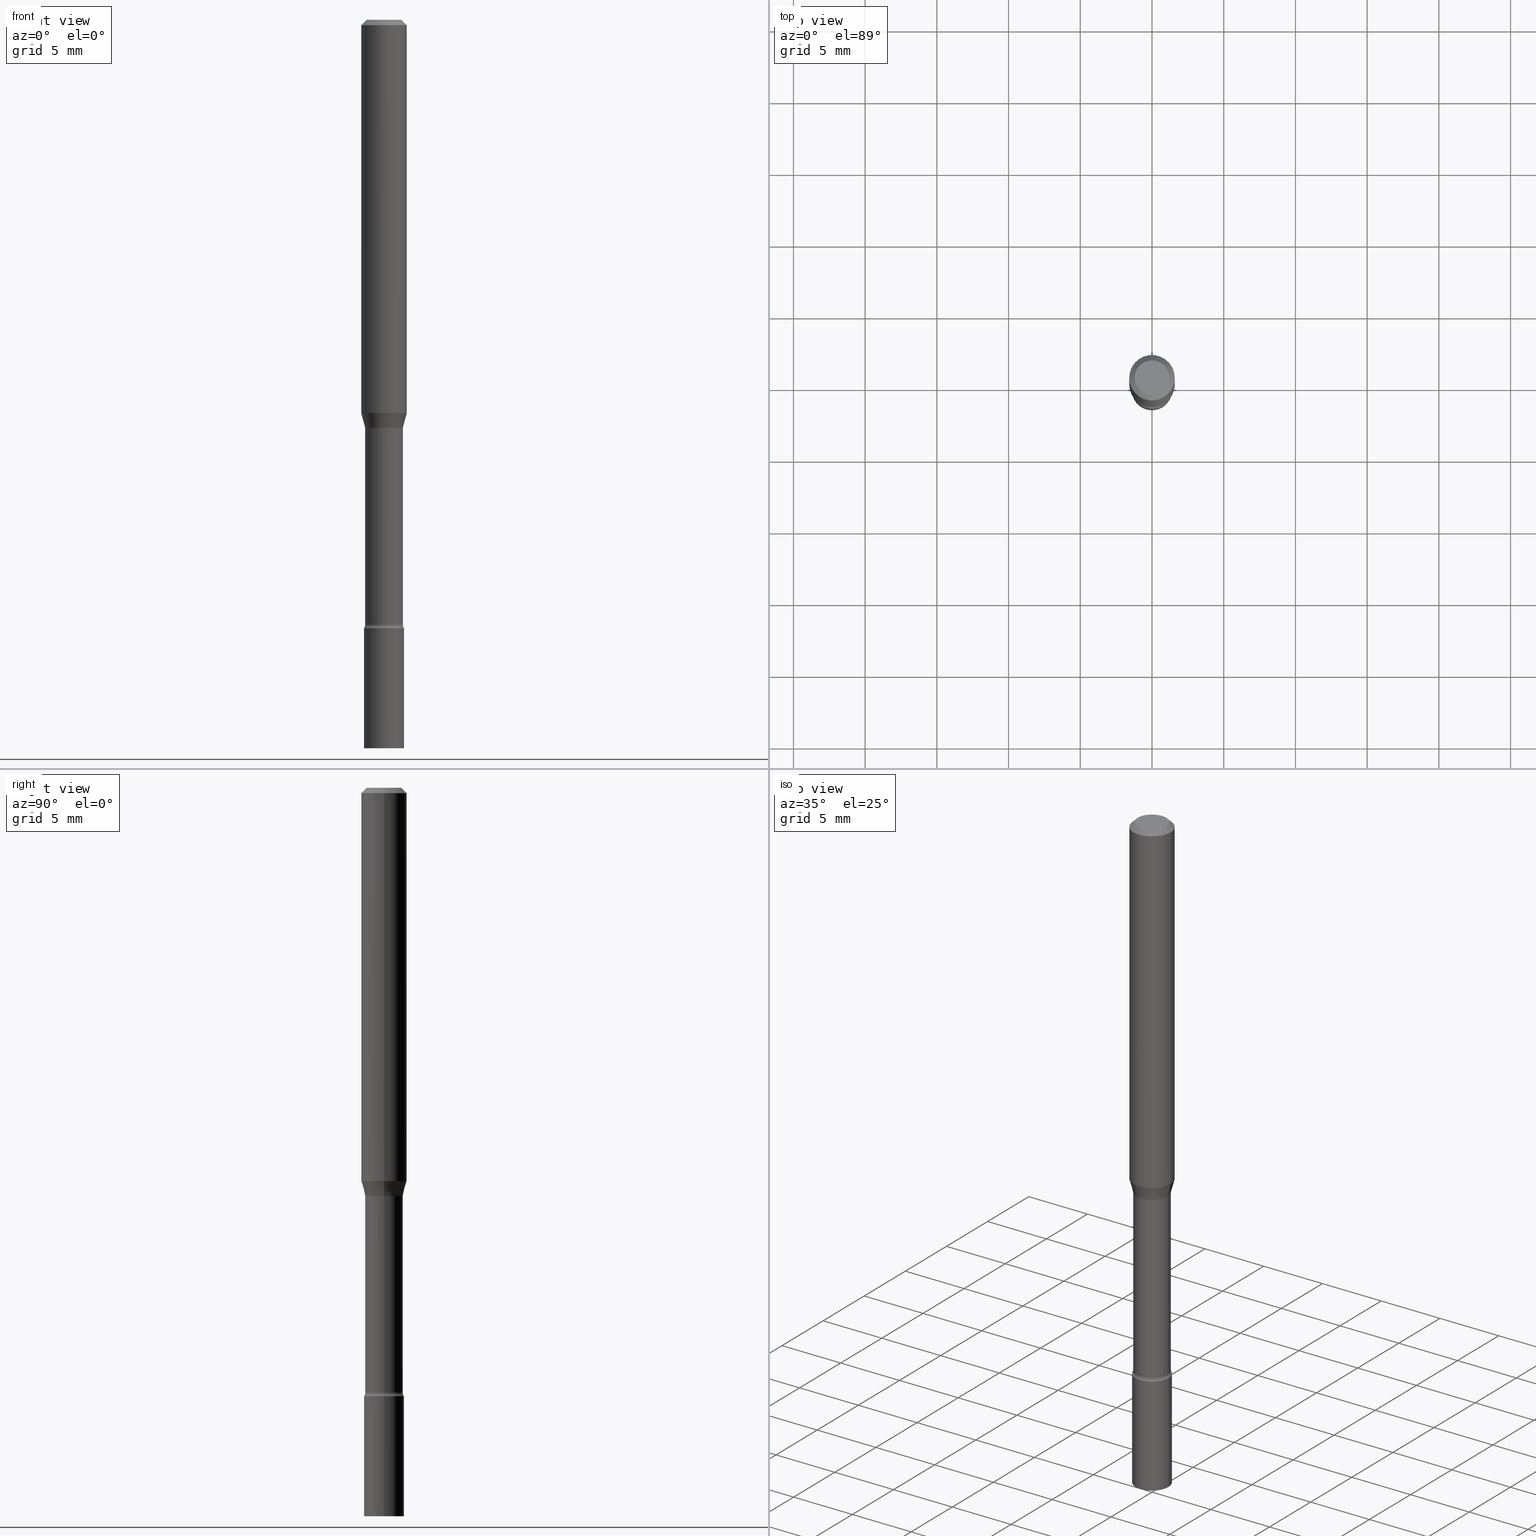
[diagram: canonical four-view strip — front | top / right | iso, engineering-drawing reading convention]
A machine part, canonical four-view strip (front | top / right | iso — engineering-drawing reading convention). The complete STEP part file that produces these views, byte-faithful:
ISO-10303-21;
HEADER;
FILE_DESCRIPTION (( 'STEP AP203' ),
    '1' );
FILE_NAME ('09887.STEP',
    '2024-03-09T02:50:11',
    ( '' ),
    ( '' ),
    'SwSTEP 2.0',
    'SolidWorks 2023',
    '' );
FILE_SCHEMA (( 'CONFIG_CONTROL_DESIGN' ));
ENDSEC;

DATA;
#1 = EDGE_CURVE ( 'NONE', #305, #97, #10, .T. ) ;
#2 = DIRECTION ( 'NONE',  ( 1.000000000000000000, -6.982962677686267499E-15, 4.876681293081646444E-29 ) ) ;
#3 = CARTESIAN_POINT ( 'NONE',  ( 3.668203209277712094E-31, -5.237222008264728876E-17, -0.01500000000000003067 ) ) ;
#4 = APPROVAL_STATUS ( 'not_yet_approved' ) ;
#5 = DIRECTION ( 'NONE',  ( 0.7071067811865475727, -7.319954787623256045E-15, -0.7071067811865474617 ) ) ;
#6 = CARTESIAN_POINT ( 'NONE',  ( 2.743754344068947711E-29, -3.917354033082399546E-15, -1.121974787463810852 ) ) ;
#7 = CYLINDRICAL_SURFACE ( 'NONE', #204, 0.05169999999999999596 ) ;
#8 = CARTESIAN_POINT ( 'NONE',  ( 2.734260335550275529E-29, -3.903799105090709748E-15, -1.118092501787272930 ) ) ;
#9 = PERSON_AND_ORGANIZATION ( #422, #38 ) ;
#10 = CIRCLE ( 'NONE', #494, 0.05169999999999999596 ) ;
#11 = CARTESIAN_POINT ( 'NONE',  ( 0.05169999999999999596, -4.278373203518779894E-15, -1.121974787463810852 ) ) ;
#12 = APPROVAL_PERSON_ORGANIZATION ( #345, #129, #445 ) ;
#13 = CARTESIAN_POINT ( 'NONE',  ( 0.06669999999999999540, -4.383117643684073264E-15, -1.121974787463810852 ) ) ;
#14 = APPROVAL_STATUS ( 'not_yet_approved' ) ;
#15 = ORIENTED_EDGE ( 'NONE', *, *, #260, .F. ) ;
#16 = EDGE_CURVE ( 'NONE', #293, #286, #377, .T. ) ;
#17 = ORIENTED_EDGE ( 'NONE', *, *, #292, .F. ) ;
#18 = AXIS2_PLACEMENT_3D ( 'NONE', #402, #443, #247 ) ;
#19 = AXIS2_PLACEMENT_3D ( 'NONE', #347, #306, #474 ) ;
#20 = ORIENTED_EDGE ( 'NONE', *, *, #122, .T. ) ;
#21 = EDGE_LOOP ( 'NONE', ( #471, #128, #279, #140 ) ) ;
#22 = ORIENTED_EDGE ( 'NONE', *, *, #290, .F. ) ;
#23 = CIRCLE ( 'NONE', #131, 0.05221111260566397433 ) ;
#24 = EDGE_LOOP ( 'NONE', ( #251, #227 ) ) ;
#25 = CIRCLE ( 'NONE', #308, 0.06250000000000000000 ) ;
#26 = EDGE_LOOP ( 'NONE', ( #208, #94, #374, #206 ) ) ;
#27 = CARTESIAN_POINT ( 'NONE',  ( 3.668203209277712094E-31, -5.237222008264728876E-17, -0.01500000000000003067 ) ) ;
#28 = DIRECTION ( 'NONE',  ( 1.000000000000000000, -6.982962677686270655E-15, 0.000000000000000000 ) ) ;
#29 = CIRCLE ( 'NONE', #64, 0.05169999999999999596 ) ;
#30 = LINE ( 'NONE', #115, #463 ) ;
#31 = EDGE_LOOP ( 'NONE', ( #17, #490, #20, #57 ) ) ;
#32 = DIRECTION ( 'NONE',  ( -0.7071067811865475727, 2.468850131082257455E-15, -0.7071067811865474617 ) ) ;
#33 = COORDINATED_UNIVERSAL_TIME_OFFSET ( 5, 0, .BEHIND. ) ;
#34 = CARTESIAN_POINT ( 'NONE',  ( 0.06250000000000000000, -4.206166100757109434E-15, -1.079693851278256123 ) ) ;
#35 = CC_DESIGN_PERSON_AND_ORGANIZATION_ASSIGNMENT ( #487, #412, ( #47 ) ) ;
#36 = DIRECTION ( 'NONE',  ( -2.445468806185136597E-29, 3.491481338843145583E-15, 1.000000000000000000 ) ) ;
#37 = CIRCLE ( 'NONE', #18, 0.01500000000000006189 ) ;
#38 = ORGANIZATION ( 'UNSPECIFIED', 'UNSPECIFIED', '' ) ;
#39 = DIRECTION ( 'NONE',  ( 1.000000000000000000, -6.982962677686262766E-15, 0.000000000000000000 ) ) ;
#40 = CARTESIAN_POINT ( 'NONE',  ( -0.06250000000000000000, -1.466962366892119806E-15, -0.01500000000000003067 ) ) ;
#41 = DIRECTION ( 'NONE',  ( -2.438088387897960049E-29, 3.491481338843145188E-15, 1.000000000000000000 ) ) ;
#42 = DIRECTION ( 'NONE',  ( 1.000000000000000000, -6.982962677686266711E-15, 0.000000000000000000 ) ) ;
#43 = APPROVAL_ROLE ( '' ) ;
#44 = CARTESIAN_POINT ( 'NONE',  ( 4.060978042117791300E-29, -5.798000373443578100E-15, -1.660613307291702645 ) ) ;
#45 = EDGE_CURVE ( 'NONE', #446, #173, #29, .T. ) ;
#46 = DIRECTION ( 'NONE',  ( 1.000000000000000000, -6.982962677686266711E-15, 4.876176775795936353E-29 ) ) ;
#47 = SECURITY_CLASSIFICATION ( '', '', #273 ) ;
#48 = MANIFOLD_SOLID_BREP ( 'Body-Move/Copy2[1]', #363 ) ;
#49 = EDGE_LOOP ( 'NONE', ( #453, #178 ) ) ;
#50 = MANIFOLD_SOLID_BREP ( 'Body-Move/Copy2[2]', #456 ) ;
#51 = CARTESIAN_POINT ( 'NONE',  ( 7.070806723891919892E-46, -1.009523804376275404E-31, -2.891391092786900929E-17 ) ) ;
#52 = APPROVAL ( #4, 'UNSPECIFIED' ) ;
#53 = ORIENTED_EDGE ( 'NONE', *, *, #365, .T. ) ;
#54 = LINE ( 'NONE', #496, #90 ) ;
#55 = ORIENTED_EDGE ( 'NONE', *, *, #292, .T. ) ;
#56 = APPROVAL_DATE_TIME ( #285, #440 ) ;
#57 = ORIENTED_EDGE ( 'NONE', *, *, #188, .T. ) ;
#58 = DIRECTION ( 'NONE',  ( -2.445468806185136597E-29, 3.491481338843145583E-15, 1.000000000000000000 ) ) ;
#59 = EDGE_CURVE ( 'NONE', #286, #346, #333, .T. ) ;
#60 = VECTOR ( 'NONE', #358, 39.37007874015748143 ) ;
#61 = VERTEX_POINT ( 'NONE', #376 ) ;
#62 = CARTESIAN_POINT ( 'NONE',  ( 4.083932906329177803E-29, -5.830773835868053056E-15, -1.669999999999999929 ) ) ;
#63 = DIRECTION ( 'NONE',  ( -2.445468806185136877E-29, 3.491481338843145188E-15, 1.000000000000000000 ) ) ;
#64 = AXIS2_PLACEMENT_3D ( 'NONE', #295, #110, #338 ) ;
#65 = ORIENTED_EDGE ( 'NONE', *, *, #283, .T. ) ;
#66 = LOCAL_TIME ( 21, 50, 11.00000000000000000, #33 ) ;
#67 = CARTESIAN_POINT ( 'NONE',  ( 3.668203209277712094E-31, -5.237222008264728876E-17, -0.01500000000000003067 ) ) ;
#68 = PERSON_AND_ORGANIZATION_ROLE ( 'design_supplier' ) ;
#69 = CARTESIAN_POINT ( 'NONE',  ( 0.04749999999999999362, -4.035134999187579609E-16, -2.891391092786643933E-17 ) ) ;
#70 = FACE_OUTER_BOUND ( 'NONE', #289, .T. ) ;
#71 = DIRECTION ( 'NONE',  ( -6.982962677686266711E-15, -1.000000000000000000, 3.491481338843145583E-15 ) ) ;
#72 = APPLICATION_CONTEXT ( 'configuration controlled 3d designs of mechanical parts and assemblies' ) ;
#73 = DATE_AND_TIME ( #113, #181 ) ;
#74 = DIRECTION ( 'NONE',  ( -2.445468806185136597E-29, 3.491481338843145583E-15, 1.000000000000000000 ) ) ;
#75 = PERSON_AND_ORGANIZATION_ROLE ( 'design_owner' ) ;
#76 = TOROIDAL_SURFACE ( 'NONE', #334, 0.06669999999999999540, 0.01499999999999999771 ) ;
#77 = TOROIDAL_SURFACE ( 'NONE', #168, 0.06670000000000005091, 0.01500000000000005322 ) ;
#78 = LINE ( 'NONE', #311, #427 ) ;
#79 = CARTESIAN_POINT ( 'NONE',  ( -0.06670000000000005091, -5.324068368691591408E-15, -1.660613307291702645 ) ) ;
#80 = DIRECTION ( 'NONE',  ( -1.000000000000000000, 6.982962677686265922E-15, -4.876176775795935793E-29 ) ) ;
#81 = DIRECTION ( 'NONE',  ( 7.105427357601001859E-15, 1.000000000000000000, -3.491481338843145583E-15 ) ) ;
#82 = CARTESIAN_POINT ( 'NONE',  ( -0.06250000000000000000, 3.840629472727443437E-16, -0.01500000000000003067 ) ) ;
#83 = DIRECTION ( 'NONE',  ( -2.445468806185136597E-29, 3.491481338843145583E-15, 1.000000000000000000 ) ) ;
#84 = ORIENTED_EDGE ( 'NONE', *, *, #492, .T. ) ;
#85 = ADVANCED_FACE ( 'NONE', ( #432 ), #352, .T. ) ;
#86 = DIRECTION ( 'NONE',  ( -2.445468806185136877E-29, 3.491481338843145188E-15, 1.000000000000000000 ) ) ;
#87 = VERTEX_POINT ( 'NONE', #69 ) ;
#88 = CIRCLE ( 'NONE', #397, 0.05500000000000000028 ) ;
#89 = DIRECTION ( 'NONE',  ( -1.000000000000000000, 7.105427357600993970E-15, 0.000000000000000000 ) ) ;
#90 = VECTOR ( 'NONE', #454, 39.37007874015748143 ) ;
#91 = VERTEX_POINT ( 'NONE', #294 ) ;
#92 = CC_DESIGN_PERSON_AND_ORGANIZATION_ASSIGNMENT ( #318, #146, ( #162 ) ) ;
#93 = ADVANCED_FACE ( 'NONE', ( #458 ), #76, .F. ) ;
#94 = ORIENTED_EDGE ( 'NONE', *, *, #260, .T. ) ;
#95 = EDGE_LOOP ( 'NONE', ( #411, #105, #497, #420 ) ) ;
#96 = TOROIDAL_SURFACE ( 'NONE', #222, 0.06670000000000005091, 0.01500000000000005322 ) ;
#97 = VERTEX_POINT ( 'NONE', #255 ) ;
#98 = ORIENTED_EDGE ( 'NONE', *, *, #59, .T. ) ;
#99 = APPLICATION_CONTEXT ( 'configuration controlled 3d designs of mechanical parts and assemblies' ) ;
#100 = ADVANCED_FACE ( 'NONE', ( #459 ), #268, .T. ) ;
#101 = AXIS2_PLACEMENT_3D ( 'NONE', #339, #215, #102 ) ;
#102 = DIRECTION ( 'NONE',  ( 1.000000000000000000, -6.982962677686266711E-15, 0.000000000000000000 ) ) ;
#103 = ADVANCED_FACE ( 'NONE', ( #435 ), #96, .F. ) ;
#104 = CARTESIAN_POINT ( 'NONE',  ( 7.070806723891919892E-46, -1.009523804376275404E-31, -2.891391092786900929E-17 ) ) ;
#105 = ORIENTED_EDGE ( 'NONE', *, *, #442, .F. ) ;
#106 = DIRECTION ( 'NONE',  ( -2.445468806185136597E-29, 3.491481338843145583E-15, 1.000000000000000000 ) ) ;
#107 = FACE_OUTER_BOUND ( 'NONE', #21, .T. ) ;
#108 = VECTOR ( 'NONE', #503, 39.37007874015748143 ) ;
#109 = ORIENTED_EDGE ( 'NONE', *, *, #442, .T. ) ;
#110 = DIRECTION ( 'NONE',  ( -2.445468806185136597E-29, 3.491481338843145583E-15, 1.000000000000000000 ) ) ;
#111 = CARTESIAN_POINT ( 'NONE',  ( 0.05500000000000000028, -6.214836783140797252E-15, -1.669999999999999929 ) ) ;
#112 = CARTESIAN_POINT ( 'NONE',  ( 2.734260335550275529E-29, -3.903799105090709748E-15, -1.118092501787272930 ) ) ;
#113 = CALENDAR_DATE ( 2024, 8, 3 ) ;
#114 = EDGE_CURVE ( 'NONE', #87, #346, #154, .T. ) ;
#115 = CARTESIAN_POINT ( 'NONE',  ( 0.05500000000000000028, -3.840629472727446888E-16, 2.681897226687764826E-30 ) ) ;
#116 = DIRECTION ( 'NONE',  ( -2.445468806185136597E-29, 3.491481338843145583E-15, 1.000000000000000000 ) ) ;
#117 = CARTESIAN_POINT ( 'NONE',  ( 0.05169999999999999596, -6.159019543879958449E-15, -1.660613307291702645 ) ) ;
#118 = DIRECTION ( 'NONE',  ( 1.000000000000000000, -6.982962677686262766E-15, 0.000000000000000000 ) ) ;
#119 = AXIS2_PLACEMENT_3D ( 'NONE', #8, #83, #220 ) ;
#120 = AXIS2_PLACEMENT_3D ( 'NONE', #138, #165, #369 ) ;
#121 = LINE ( 'NONE', #520, #60 ) ;
#122 = EDGE_CURVE ( 'NONE', #305, #373, #37, .T. ) ;
#123 = DIRECTION ( 'NONE',  ( 1.000000000000000000, -6.982962677686265922E-15, 4.876176775795935793E-29 ) ) ;
#124 = ORIENTED_EDGE ( 'NONE', *, *, #130, .T. ) ;
#125 = DIRECTION ( 'NONE',  ( -2.445468806185136597E-29, 3.491481338843145583E-15, 1.000000000000000000 ) ) ;
#126 = ORIENTED_EDGE ( 'NONE', *, *, #500, .F. ) ;
#127 = CALENDAR_DATE ( 2024, 8, 3 ) ;
#128 = ORIENTED_EDGE ( 'NONE', *, *, #375, .F. ) ;
#129 = APPROVAL ( #195, 'UNSPECIFIED' ) ;
#130 = EDGE_CURVE ( 'NONE', #97, #446, #78, .T. ) ;
#131 = AXIS2_PLACEMENT_3D ( 'NONE', #155, #106, #393 ) ;
#132 = AXIS2_PLACEMENT_3D ( 'NONE', #257, #340, #426 ) ;
#133 = EDGE_LOOP ( 'NONE', ( #202, #84, #366, #22 ) ) ;
#134 = EDGE_LOOP ( 'NONE', ( #337, #392 ) ) ;
#135 = ORIENTED_EDGE ( 'NONE', *, *, #114, .T. ) ;
#136 = VECTOR ( 'NONE', #5, 39.37007874015748143 ) ;
#137 = CIRCLE ( 'NONE', #19, 0.05500000000000000028 ) ;
#138 = CARTESIAN_POINT ( 'NONE',  ( 0.000000000000000000, 0.000000000000000000, 0.000000000000000000 ) ) ;
#139 = DIRECTION ( 'NONE',  ( -2.445468806185136597E-29, 3.491481338843145583E-15, 1.000000000000000000 ) ) ;
#140 = ORIENTED_EDGE ( 'NONE', *, *, #470, .T. ) ;
#141 = DIRECTION ( 'NONE',  ( -2.445468806185136597E-29, 3.491481338843145583E-15, 1.000000000000000000 ) ) ;
#142 = PRODUCT_DEFINITION_SHAPE ( 'NONE', 'NONE',  #508 ) ;
#143 = DIRECTION ( 'NONE',  ( 1.000000000000000000, -6.982962677686266711E-15, 4.876176775795935793E-29 ) ) ;
#144 = ORIENTED_EDGE ( 'NONE', *, *, #45, .T. ) ;
#145 = DIRECTION ( 'NONE',  ( -2.445468806185136597E-29, 3.491481338843145583E-15, 1.000000000000000000 ) ) ;
#146 = PERSON_AND_ORGANIZATION_ROLE ( 'creator' ) ;
#147 = ORIENTED_EDGE ( 'NONE', *, *, #122, .F. ) ;
#148 = DIRECTION ( 'NONE',  ( 1.000000000000000000, -6.982962677686266711E-15, 4.876176775795935793E-29 ) ) ;
#149 = DIRECTION ( 'NONE',  ( -2.445468806185136597E-29, 3.491481338843145583E-15, 1.000000000000000000 ) ) ;
#150 = VECTOR ( 'NONE', #480, 39.37007874015748143 ) ;
#151 = AXIS2_PLACEMENT_3D ( 'NONE', #27, #301, #382 ) ;
#152 = DIRECTION ( 'NONE',  ( 1.000000000000000000, -6.982962677686275388E-15, 0.000000000000000000 ) ) ;
#153 = DIRECTION ( 'NONE',  ( -2.445468806185136877E-29, 3.491481338843145188E-15, 1.000000000000000000 ) ) ;
#154 = LINE ( 'NONE', #357, #136 ) ;
#155 = CARTESIAN_POINT ( 'NONE',  ( 2.734260335550275529E-29, -3.903799105090709748E-15, -1.118092501787272930 ) ) ;
#156 = COORDINATED_UNIVERSAL_TIME_OFFSET ( 5, 0, .BEHIND. ) ;
#157 = EDGE_CURVE ( 'NONE', #302, #293, #314, .T. ) ;
#158 = DIRECTION ( 'NONE',  ( -2.445468806185136597E-29, 3.491481338843145583E-15, 1.000000000000000000 ) ) ;
#159 = DIRECTION ( 'NONE',  ( 1.000000000000000000, -6.982962677686266711E-15, 4.876176775795936353E-29 ) ) ;
#160 = AXIS2_PLACEMENT_3D ( 'NONE', #216, #261, #473 ) ;
#161 = AXIS2_PLACEMENT_3D ( 'NONE', #284, #450, #200 ) ;
#162 = PRODUCT_DEFINITION_FORMATION_WITH_SPECIFIED_SOURCE ( 'ANY', '', #416, .NOT_KNOWN. ) ;
#163 = CARTESIAN_POINT ( 'NONE',  ( 4.890937612370273194E-29, -6.982962677686291165E-15, -2.000000000000000000 ) ) ;
#164 = ORIENTED_EDGE ( 'NONE', *, *, #214, .F. ) ;
#165 = DIRECTION ( 'NONE',  ( 0.000000000000000000, 0.000000000000000000, 1.000000000000000000 ) ) ;
#166 = EDGE_CURVE ( 'NONE', #302, #446, #297, .T. ) ;
#167 = AXIS2_PLACEMENT_3D ( 'NONE', #399, #309, #152 ) ;
#168 = AXIS2_PLACEMENT_3D ( 'NONE', #44, #149, #398 ) ;
#169 = DATE_AND_TIME ( #325, #288 ) ;
#170 = EDGE_LOOP ( 'NONE', ( #327, #326, #185, #405 ) ) ;
#171 = CC_DESIGN_DATE_AND_TIME_ASSIGNMENT ( #73, #236, ( #508 ) ) ;
#172 = ADVANCED_FACE ( 'NONE', ( #447 ), #240, .T. ) ;
#173 = VERTEX_POINT ( 'NONE', #11 ) ;
#174 = AXIS2_PLACEMENT_3D ( 'NONE', #232, #74, #39 ) ;
#175 = ADVANCED_FACE ( 'NONE', ( #350 ), #383, .T. ) ;
#176 = DIRECTION ( 'NONE',  ( 1.000000000000000000, -6.982962677686266711E-15, 0.000000000000000000 ) ) ;
#177 = LINE ( 'NONE', #241, #224 ) ;
#178 = ORIENTED_EDGE ( 'NONE', *, *, #321, .F. ) ;
#179 = EDGE_CURVE ( 'NONE', #346, #449, #307, .T. ) ;
#180 = AXIS2_PLACEMENT_3D ( 'NONE', #386, #187, #228 ) ;
#181 = LOCAL_TIME ( 21, 50, 11.00000000000000000, #156 ) ;
#182 = CARTESIAN_POINT ( 'NONE',  ( -0.05221111260566397433, -3.429229280381647004E-15, -1.118092501787272930 ) ) ;
#183 = DIRECTION ( 'NONE',  ( -1.000000000000000000, 6.982962677686265922E-15, -4.876176775795935793E-29 ) ) ;
#184 = PERSON_AND_ORGANIZATION ( #422, #38 ) ;
#185 = ORIENTED_EDGE ( 'NONE', *, *, #179, .F. ) ;
#186 = EDGE_LOOP ( 'NONE', ( #452, #491, #98, #408 ) ) ;
#187 = DIRECTION ( 'NONE',  ( -2.445468806185136597E-29, 3.491481338843145583E-15, 1.000000000000000000 ) ) ;
#188 = EDGE_CURVE ( 'NONE', #373, #507, #263, .T. ) ;
#189 = CALENDAR_DATE ( 2024, 8, 3 ) ;
#190 = DIRECTION ( 'NONE',  ( 1.000000000000000000, -6.982962677686262766E-15, 0.000000000000000000 ) ) ;
#191 =( CONVERSION_BASED_UNIT ( 'INCH', #316 ) LENGTH_UNIT ( ) NAMED_UNIT ( #275 ) );
#192 = CIRCLE ( 'NONE', #217, 0.01500000000000006189 ) ;
#193 = DIRECTION ( 'NONE',  ( 1.000000000000000000, -6.982962677686262766E-15, 4.883557194083110659E-29 ) ) ;
#194 = LINE ( 'NONE', #315, #150 ) ;
#195 = APPROVAL_STATUS ( 'not_yet_approved' ) ;
#196 = EDGE_CURVE ( 'NONE', #286, #293, #502, .T. ) ;
#197 = FACE_OUTER_BOUND ( 'NONE', #501, .T. ) ;
#198 = DIRECTION ( 'NONE',  ( 2.438088387897960049E-29, -3.491481338843145188E-15, -1.000000000000000000 ) ) ;
#199 = COORDINATED_UNIVERSAL_TIME_OFFSET ( 5, 0, .BEHIND. ) ;
#200 = DIRECTION ( 'NONE',  ( 1.000000000000000000, -6.982962677686266711E-15, 4.876176775795935793E-29 ) ) ;
#201 = COORDINATED_UNIVERSAL_TIME_OFFSET ( 5, 0, .BEHIND. ) ;
#202 = ORIENTED_EDGE ( 'NONE', *, *, #424, .F. ) ;
#203 = AXIS2_PLACEMENT_3D ( 'NONE', #62, #379, #506 ) ;
#204 = AXIS2_PLACEMENT_3D ( 'NONE', #444, #270, #159 ) ;
#205 = COORDINATED_UNIVERSAL_TIME_OFFSET ( 5, 0, .BEHIND. ) ;
#206 = ORIENTED_EDGE ( 'NONE', *, *, #16, .F. ) ;
#207 = ADVANCED_FACE ( 'NONE', ( #509 ), #258, .T. ) ;
#208 = ORIENTED_EDGE ( 'NONE', *, *, #157, .F. ) ;
#209 = ORIENTED_EDGE ( 'NONE', *, *, #424, .T. ) ;
#210 = CIRCLE ( 'NONE', #341, 0.05500000000000000028 ) ;
#211 = ORIENTED_EDGE ( 'NONE', *, *, #324, .F. ) ;
#212 = PRODUCT_RELATED_PRODUCT_CATEGORY ( 'detail', '', ( #416 ) ) ;
#213 = DIRECTION ( 'NONE',  ( 1.000000000000000000, -6.982962677686275388E-15, 0.000000000000000000 ) ) ;
#214 = EDGE_CURVE ( 'NONE', #87, #291, #287, .T. ) ;
#215 = DIRECTION ( 'NONE',  ( -2.445468806185136597E-29, 3.491481338843145583E-15, 1.000000000000000000 ) ) ;
#216 = CARTESIAN_POINT ( 'NONE',  ( 2.640357633530869874E-29, -3.769730933401717765E-15, -1.079693851278256123 ) ) ;
#217 = AXIS2_PLACEMENT_3D ( 'NONE', #79, #277, #468 ) ;
#218 = AXIS2_PLACEMENT_3D ( 'NONE', #51, #499, #493 ) ;
#219 = ORIENTED_EDGE ( 'NONE', *, *, #45, .F. ) ;
#220 = DIRECTION ( 'NONE',  ( 1.000000000000000000, -6.982962677686266711E-15, 0.000000000000000000 ) ) ;
#221 = DIRECTION ( 'NONE',  ( -2.445468806185136597E-29, 3.491481338843145583E-15, 1.000000000000000000 ) ) ;
#222 = AXIS2_PLACEMENT_3D ( 'NONE', #362, #116, #193 ) ;
#223 = AXIS2_PLACEMENT_3D ( 'NONE', #259, #387, #183 ) ;
#224 = VECTOR ( 'NONE', #153, 39.37007874015748143 ) ;
#225 = ORIENTED_EDGE ( 'NONE', *, *, #365, .F. ) ;
#226 = CC_DESIGN_DATE_AND_TIME_ASSIGNMENT ( #169, #448, ( #47 ) ) ;
#227 = ORIENTED_EDGE ( 'NONE', *, *, #492, .F. ) ;
#228 = DIRECTION ( 'NONE',  ( 1.000000000000000000, -6.982962677686265922E-15, 0.000000000000000000 ) ) ;
#229 = PLANE ( 'NONE',  #353 ) ;
#230 = CC_DESIGN_PERSON_AND_ORGANIZATION_ASSIGNMENT ( #9, #75, ( #416 ) ) ;
#231 = ORIENTED_EDGE ( 'NONE', *, *, #179, .T. ) ;
#232 = CARTESIAN_POINT ( 'NONE',  ( 4.890937612370273194E-29, -6.982962677686291165E-15, -2.000000000000000000 ) ) ;
#233 = DIRECTION ( 'NONE',  ( 1.000000000000000000, -6.982962677686270655E-15, 0.000000000000000000 ) ) ;
#234 = CARTESIAN_POINT ( 'NONE',  ( -0.05500000000000000028, -6.016069752109117450E-15, -1.669999999999999929 ) ) ;
#235 = AXIS2_PLACEMENT_3D ( 'NONE', #429, #139, #176 ) ;
#236 = DATE_TIME_ROLE ( 'creation_date' ) ;
#237 = AXIS2_PLACEMENT_3D ( 'NONE', #400, #198, #80 ) ;
#238 = CARTESIAN_POINT ( 'NONE',  ( 4.083932906329177803E-29, -5.830773835868053056E-15, -1.669999999999999929 ) ) ;
#239 = MECHANICAL_CONTEXT ( 'NONE', #72, 'mechanical' ) ;
#240 = CYLINDRICAL_SURFACE ( 'NONE', #161, 0.05500000000000000028 ) ;
#241 = CARTESIAN_POINT ( 'NONE',  ( -0.05500000000000000028, 3.907985046680551042E-16, -2.705414299640198362E-30 ) ) ;
#242 = ORIENTED_EDGE ( 'NONE', *, *, #300, .F. ) ;
#243 = VERTEX_POINT ( 'NONE', #234 ) ;
#244 = AXIS2_PLACEMENT_3D ( 'NONE', #67, #312, #433 ) ;
#245 = AXIS2_PLACEMENT_3D ( 'NONE', #6, #145, #515 ) ;
#246 = EDGE_CURVE ( 'NONE', #97, #305, #371, .T. ) ;
#247 = DIRECTION ( 'NONE',  ( 1.000000000000000000, -6.982962677686239100E-15, 0.000000000000000000 ) ) ;
#248 = EDGE_LOOP ( 'NONE', ( #517, #55, #409, #147 ) ) ;
#249 = ORIENTED_EDGE ( 'NONE', *, *, #196, .F. ) ;
#250 = ADVANCED_FACE ( 'NONE', ( #351 ), #439, .T. ) ;
#251 = ORIENTED_EDGE ( 'NONE', *, *, #254, .F. ) ;
#252 = AXIS2_PLACEMENT_3D ( 'NONE', #238, #41, #511 ) ;
#253 = EDGE_LOOP ( 'NONE', ( #164, #135, #231, #330 ) ) ;
#254 = EDGE_CURVE ( 'NONE', #319, #61, #421, .T. ) ;
#255 = CARTESIAN_POINT ( 'NONE',  ( -0.05169999999999999596, -5.435312555127801674E-15, -1.660613307291702645 ) ) ;
#256 = ORIENTED_EDGE ( 'NONE', *, *, #254, .T. ) ;
#257 = CARTESIAN_POINT ( 'NONE',  ( 0.000000000000000000, 0.000000000000000000, 0.000000000000000000 ) ) ;
#258 = CYLINDRICAL_SURFACE ( 'NONE', #472, 0.06250000000000000000 ) ;
#259 = CARTESIAN_POINT ( 'NONE',  ( 3.840629472727935489E-16, 0.05499999999999301975, -2.000000000000000444 ) ) ;
#260 = EDGE_CURVE ( 'NONE', #302, #91, #23, .T. ) ;
#261 = DIRECTION ( 'NONE',  ( -2.445468806185136597E-29, 3.491481338843145583E-15, 1.000000000000000000 ) ) ;
#262 = DIRECTION ( 'NONE',  ( 1.000000000000000000, -6.982962677686262766E-15, 0.000000000000000000 ) ) ;
#263 = CIRCLE ( 'NONE', #203, 0.05500000000000000028 ) ;
#264 = CIRCLE ( 'NONE', #464, 0.05221111260566397433 ) ;
#265 = CARTESIAN_POINT ( 'NONE',  ( 0.06250000000000000000, -4.364351673553916694E-16, 3.047610484872459871E-30 ) ) ;
#266 = CARTESIAN_POINT ( 'NONE',  ( 0.05500000000000004191, -6.214836783140797252E-15, -1.669999999999999929 ) ) ;
#267 = FACE_OUTER_BOUND ( 'NONE', #49, .T. ) ;
#268 = CYLINDRICAL_SURFACE ( 'NONE', #384, 0.05169999999999999596 ) ;
#269 = CARTESIAN_POINT ( 'NONE',  ( 0.000000000000000000, 0.000000000000000000, 0.000000000000000000 ) ) ;
#270 = DIRECTION ( 'NONE',  ( -2.445468806185136597E-29, 3.491481338843145583E-15, 1.000000000000000000 ) ) ;
#271 = CALENDAR_DATE ( 2024, 8, 3 ) ;
#272 = DIRECTION ( 'NONE',  ( -2.445468806185136597E-29, 3.491481338843145583E-15, 1.000000000000000000 ) ) ;
#273 = SECURITY_CLASSIFICATION_LEVEL ( 'unclassified' ) ;
#274 = CIRCLE ( 'NONE', #218, 0.04749999999999999362 ) ;
#275 = DIMENSIONAL_EXPONENTS ( 1.000000000000000000, 0.000000000000000000, 0.000000000000000000, 0.000000000000000000, 0.000000000000000000, 0.000000000000000000, 0.000000000000000000 ) ;
#276 = CARTESIAN_POINT ( 'NONE',  ( -0.06669999999999999540, -3.443422028330412853E-15, -1.121974787463810852 ) ) ;
#277 = DIRECTION ( 'NONE',  ( 7.105427357601001859E-15, 1.000000000000000000, -3.491481338843145583E-15 ) ) ;
#278 = FACE_OUTER_BOUND ( 'NONE', #134, .T. ) ;
#279 = ORIENTED_EDGE ( 'NONE', *, *, #516, .T. ) ;
#280 = CARTESIAN_POINT ( 'NONE',  ( -0.05221111260566397433, -3.532816837211638860E-15, -1.118092501787272930 ) ) ;
#281 = CARTESIAN_POINT ( 'NONE',  ( 3.840629472727855124E-16, 0.05499999999999417161, -1.670000000000000151 ) ) ;
#282 = EDGE_LOOP ( 'NONE', ( #457, #413, #65, #219 ) ) ;
#283 = EDGE_CURVE ( 'NONE', #305, #173, #121, .T. ) ;
#284 = CARTESIAN_POINT ( 'NONE',  ( 0.000000000000000000, 0.000000000000000000, 0.000000000000000000 ) ) ;
#285 = DATE_AND_TIME ( #127, #320 ) ;
#286 = VERTEX_POINT ( 'NONE', #34 ) ;
#287 = CIRCLE ( 'NONE', #484, 0.04749999999999999362 ) ;
#288 = LOCAL_TIME ( 21, 50, 11.00000000000000000, #201 ) ;
#289 = EDGE_LOOP ( 'NONE', ( #256, #209, #225, #242 ) ) ;
#290 = EDGE_CURVE ( 'NONE', #243, #370, #88, .T. ) ;
#291 = VERTEX_POINT ( 'NONE', #478 ) ;
#292 = EDGE_CURVE ( 'NONE', #97, #507, #192, .T. ) ;
#293 = VERTEX_POINT ( 'NONE', #483 ) ;
#294 = CARTESIAN_POINT ( 'NONE',  ( 0.05221111260566397433, -4.268387355776536933E-15, -1.118092501787272930 ) ) ;
#295 = CARTESIAN_POINT ( 'NONE',  ( 2.743754344068947711E-29, -3.917354033082399546E-15, -1.121974787463810852 ) ) ;
#296 = EDGE_CURVE ( 'NONE', #91, #286, #194, .T. ) ;
#297 = CIRCLE ( 'NONE', #317, 0.01499999999999999424 ) ;
#298 = AXIS2_PLACEMENT_3D ( 'NONE', #163, #475, #118 ) ;
#299 = CARTESIAN_POINT ( 'NONE',  ( 2.640357633530869874E-29, -3.769730933401717765E-15, -1.079693851278256123 ) ) ;
#300 = EDGE_CURVE ( 'NONE', #319, #370, #30, .T. ) ;
#301 = DIRECTION ( 'NONE',  ( 2.445468806185136597E-29, -3.491481338843145583E-15, -1.000000000000000000 ) ) ;
#302 = VERTEX_POINT ( 'NONE', #182 ) ;
#303 = CARTESIAN_POINT ( 'NONE',  ( 4.083932906329177803E-29, -5.830773835868053056E-15, -1.669999999999999929 ) ) ;
#304 = ADVANCED_FACE ( 'NONE', ( #70 ), #430, .T. ) ;
#305 = VERTEX_POINT ( 'NONE', #117 ) ;
#306 = DIRECTION ( 'NONE',  ( -2.445468806185136597E-29, 3.491481338843145583E-15, 1.000000000000000000 ) ) ;
#307 = CIRCLE ( 'NONE', #101, 0.06250000000000000000 ) ;
#308 = AXIS2_PLACEMENT_3D ( 'NONE', #3, #36, #359 ) ;
#309 = DIRECTION ( 'NONE',  ( -2.445468806185136597E-29, 3.491481338843145583E-15, 1.000000000000000000 ) ) ;
#310 =( LENGTH_UNIT ( ) NAMED_UNIT ( * ) SI_UNIT ( $, .METRE. ) );
#311 = CARTESIAN_POINT ( 'NONE',  ( -0.05169999999999999596, 3.673505943879717674E-16, -2.543089441661786117E-30 ) ) ;
#312 = DIRECTION ( 'NONE',  ( 2.445468806185136597E-29, -3.491481338843145583E-15, -1.000000000000000000 ) ) ;
#313 = CARTESIAN_POINT ( 'NONE',  ( -0.05169999999999999596, -4.490326608875016858E-15, -1.121974787463810852 ) ) ;
#314 = LINE ( 'NONE', #280, #328 ) ;
#315 = CARTESIAN_POINT ( 'NONE',  ( 0.05221111260566397433, -4.268387355776536933E-15, -1.118092501787272930 ) ) ;
#316 = LENGTH_MEASURE_WITH_UNIT ( LENGTH_MEASURE( 0.02539999999999999897 ), #310 );
#317 = AXIS2_PLACEMENT_3D ( 'NONE', #276, #81, #89 ) ;
#318 = PERSON_AND_ORGANIZATION ( #422, #38 ) ;
#319 = VERTEX_POINT ( 'NONE', #355 ) ;
#320 = LOCAL_TIME ( 21, 50, 11.00000000000000000, #205 ) ;
#321 = EDGE_CURVE ( 'NONE', #507, #373, #210, .T. ) ;
#322 = ORIENTED_EDGE ( 'NONE', *, *, #283, .F. ) ;
#323 = CARTESIAN_POINT ( 'NONE',  ( 0.000000000000000000, 0.000000000000000000, 0.000000000000000000 ) ) ;
#324 = EDGE_CURVE ( 'NONE', #173, #446, #414, .T. ) ;
#325 = CALENDAR_DATE ( 2024, 8, 3 ) ;
#326 = ORIENTED_EDGE ( 'NONE', *, *, #394, .T. ) ;
#327 = ORIENTED_EDGE ( 'NONE', *, *, #196, .T. ) ;
#328 = VECTOR ( 'NONE', #482, 39.37007874015748143 ) ;
#329 = APPROVAL_PERSON_ORGANIZATION ( #364, #440, #367 ) ;
#330 = ORIENTED_EDGE ( 'NONE', *, *, #516, .F. ) ;
#331 = SHAPE_DEFINITION_REPRESENTATION ( #142, #410 ) ;
#332 = ORIENTED_EDGE ( 'NONE', *, *, #1, .T. ) ;
#333 = LINE ( 'NONE', #265, #108 ) ;
#334 = AXIS2_PLACEMENT_3D ( 'NONE', #419, #58, #505 ) ;
#335 = LOCAL_TIME ( 21, 50, 11.00000000000000000, #199 ) ;
#336 = ADVANCED_FACE ( 'NONE', ( #436 ), #438, .T. ) ;
#337 = ORIENTED_EDGE ( 'NONE', *, *, #375, .T. ) ;
#338 = DIRECTION ( 'NONE',  ( 1.000000000000000000, -6.982962677686265922E-15, 0.000000000000000000 ) ) ;
#339 = CARTESIAN_POINT ( 'NONE',  ( 3.668203209277712094E-31, -5.237222008264728876E-17, -0.01500000000000003067 ) ) ;
#340 = DIRECTION ( 'NONE',  ( -2.445468806185136597E-29, 3.491481338843145583E-15, 1.000000000000000000 ) ) ;
#341 = AXIS2_PLACEMENT_3D ( 'NONE', #303, #272, #262 ) ;
#342 = CC_DESIGN_APPROVAL ( #52, ( #508 ) ) ;
#343 = CARTESIAN_POINT ( 'NONE',  ( 0.000000000000000000, 0.000000000000000000, 0.000000000000000000 ) ) ;
#344 = CARTESIAN_POINT ( 'NONE',  ( 4.083932906329177803E-29, -5.830773835868053056E-15, -1.669999999999999929 ) ) ;
#345 = PERSON_AND_ORGANIZATION ( #422, #38 ) ;
#346 = VERTEX_POINT ( 'NONE', #389 ) ;
#347 = CARTESIAN_POINT ( 'NONE',  ( 4.083932906329177803E-29, -5.830773835868053056E-15, -1.669999999999999929 ) ) ;
#348 = CC_DESIGN_PERSON_AND_ORGANIZATION_ASSIGNMENT ( #481, #68, ( #162 ) ) ;
#349 = PLANE ( 'NONE',  #237 ) ;
#350 = FACE_OUTER_BOUND ( 'NONE', #26, .T. ) ;
#351 = FACE_OUTER_BOUND ( 'NONE', #253, .T. ) ;
#352 = CONICAL_SURFACE ( 'NONE', #235, 0.05221111260566397433, 0.2617993877991502960 ) ;
#353 = AXIS2_PLACEMENT_3D ( 'NONE', #281, #434, #123 ) ;
#354 = PERSON_AND_ORGANIZATION_ROLE ( 'creator' ) ;
#355 = CARTESIAN_POINT ( 'NONE',  ( 0.05500000000000000028, -7.367025624959035361E-15, -2.000000000000000000 ) ) ;
#356 = APPLICATION_PROTOCOL_DEFINITION ( 'international standard', 'config_control_design', 1994, #72 ) ;
#357 = CARTESIAN_POINT ( 'NONE',  ( 0.06250000000000000000, -4.811533449433680977E-16, -0.01500000000000003067 ) ) ;
#358 = DIRECTION ( 'NONE',  ( -2.445468806185136877E-29, 3.491481338843145188E-15, 1.000000000000000000 ) ) ;
#359 = DIRECTION ( 'NONE',  ( 1.000000000000000000, -6.982962677686266711E-15, 0.000000000000000000 ) ) ;
#360 = APPROVAL_DATE_TIME ( #513, #129 ) ;
#361 = ADVANCED_FACE ( 'NONE', ( #197 ), #415, .F. ) ;
#362 = CARTESIAN_POINT ( 'NONE',  ( 4.060978042117791300E-29, -5.798000373443578100E-15, -1.660613307291702645 ) ) ;
#363 = CLOSED_SHELL ( 'NONE', ( #304, #336, #172, #418 ) ) ;
#364 = PERSON_AND_ORGANIZATION ( #422, #38 ) ;
#365 = EDGE_CURVE ( 'NONE', #370, #243, #137, .T. ) ;
#366 = ORIENTED_EDGE ( 'NONE', *, *, #300, .T. ) ;
#367 = APPROVAL_ROLE ( '' ) ;
#368 = ORIENTED_EDGE ( 'NONE', *, *, #166, .T. ) ;
#369 = DIRECTION ( 'NONE',  ( 1.000000000000000000, 0.000000000000000000, 0.000000000000000000 ) ) ;
#370 = VERTEX_POINT ( 'NONE', #111 ) ;
#371 = CIRCLE ( 'NONE', #167, 0.05169999999999999596 ) ;
#372 = AXIS2_PLACEMENT_3D ( 'NONE', #13, #71, #233 ) ;
#373 = VERTEX_POINT ( 'NONE', #266 ) ;
#374 = ORIENTED_EDGE ( 'NONE', *, *, #296, .T. ) ;
#375 = EDGE_CURVE ( 'NONE', #291, #87, #274, .T. ) ;
#376 = CARTESIAN_POINT ( 'NONE',  ( -0.05500000000000000028, -6.016069752109117450E-15, -2.000000000000000000 ) ) ;
#377 = CIRCLE ( 'NONE', #160, 0.06250000000000000000 ) ;
#378 = CIRCLE ( 'NONE', #298, 0.05500000000000000028 ) ;
#379 = DIRECTION ( 'NONE',  ( -2.445468806185136597E-29, 3.491481338843145583E-15, 1.000000000000000000 ) ) ;
#380 = EDGE_LOOP ( 'NONE', ( #109, #417, #249, #488 ) ) ;
#381 = PLANE ( 'NONE',  #223 ) ;
#382 = DIRECTION ( 'NONE',  ( -1.000000000000000000, 6.982962677686266711E-15, 0.000000000000000000 ) ) ;
#383 = CONICAL_SURFACE ( 'NONE', #119, 0.05221111260566397433, 0.2617993877991502960 ) ;
#384 = AXIS2_PLACEMENT_3D ( 'NONE', #323, #489, #46 ) ;
#385 = CONICAL_SURFACE ( 'NONE', #151, 0.06250000000000000000, 0.7853981633974483900 ) ;
#386 = CARTESIAN_POINT ( 'NONE',  ( 2.743754344068947711E-29, -3.917354033082399546E-15, -1.121974787463810852 ) ) ;
#387 = DIRECTION ( 'NONE',  ( 2.438088387897960049E-29, -3.491481338843145188E-15, -1.000000000000000000 ) ) ;
#388 = ORIENTED_EDGE ( 'NONE', *, *, #290, .T. ) ;
#389 = CARTESIAN_POINT ( 'NONE',  ( 0.06250000000000000000, -4.888073874380389458E-16, -0.01500000000000003067 ) ) ;
#390 = FACE_OUTER_BOUND ( 'NONE', #495, .T. ) ;
#391 = APPLICATION_PROTOCOL_DEFINITION ( 'international standard', 'config_control_design', 1994, #99 ) ;
#392 = ORIENTED_EDGE ( 'NONE', *, *, #214, .T. ) ;
#393 = DIRECTION ( 'NONE',  ( 1.000000000000000000, -6.982962677686266711E-15, 0.000000000000000000 ) ) ;
#394 = EDGE_CURVE ( 'NONE', #293, #449, #54, .T. ) ;
#395 = LINE ( 'NONE', #82, #451 ) ;
#396 = DIRECTION ( 'NONE',  ( -2.445468806185136597E-29, 3.491481338843145583E-15, 1.000000000000000000 ) ) ;
#397 = AXIS2_PLACEMENT_3D ( 'NONE', #344, #158, #190 ) ;
#398 = DIRECTION ( 'NONE',  ( 1.000000000000000000, -6.982962677686262766E-15, 4.883557194083110659E-29 ) ) ;
#399 = CARTESIAN_POINT ( 'NONE',  ( 4.060978042117791300E-29, -5.798000373443578100E-15, -1.660613307291702645 ) ) ;
#400 = CARTESIAN_POINT ( 'NONE',  ( 3.316907271900976096E-16, 0.04749999999999999362, -1.803023190589839165E-16 ) ) ;
#401 = ADVANCED_FACE ( 'NONE', ( #107 ), #385, .T. ) ;
#402 = CARTESIAN_POINT ( 'NONE',  ( 0.06670000000000005091, -6.263763984045252607E-15, -1.660613307291702645 ) ) ;
#403 = CARTESIAN_POINT ( 'NONE',  ( -0.05500000000000004191, -5.439975331199998395E-15, -1.669999999999999929 ) ) ;
#404 = APPROVAL_DATE_TIME ( #437, #52 ) ;
#405 = ORIENTED_EDGE ( 'NONE', *, *, #59, .F. ) ;
#406 = ADVANCED_FACE ( 'NONE', ( #462 ), #460, .T. ) ;
#407 = CC_DESIGN_SECURITY_CLASSIFICATION ( #47, ( #162 ) ) ;
#408 = ORIENTED_EDGE ( 'NONE', *, *, #470, .F. ) ;
#409 = ORIENTED_EDGE ( 'NONE', *, *, #321, .T. ) ;
#410 = ADVANCED_BREP_SHAPE_REPRESENTATION ( '09887', ( #48, #50, #120 ), #441 ) ;
#411 = ORIENTED_EDGE ( 'NONE', *, *, #166, .F. ) ;
#412 = PERSON_AND_ORGANIZATION_ROLE ( 'classification_officer' ) ;
#413 = ORIENTED_EDGE ( 'NONE', *, *, #246, .T. ) ;
#414 = CIRCLE ( 'NONE', #180, 0.05169999999999999596 ) ;
#415 = TOROIDAL_SURFACE ( 'NONE', #245, 0.06669999999999999540, 0.01499999999999999771 ) ;
#416 = PRODUCT ( '09887', '09887', '', ( #239 ) ) ;
#417 = ORIENTED_EDGE ( 'NONE', *, *, #157, .T. ) ;
#418 = ADVANCED_FACE ( 'NONE', ( #466 ), #381, .T. ) ;
#419 = CARTESIAN_POINT ( 'NONE',  ( 2.743754344068947711E-29, -3.917354033082399546E-15, -1.121974787463810852 ) ) ;
#420 = ORIENTED_EDGE ( 'NONE', *, *, #324, .T. ) ;
#421 = CIRCLE ( 'NONE', #174, 0.05500000000000000028 ) ;
#422 = PERSON ( 'UNSPECIFIED', 'UNSPECIFIED', 'UNSPECIFIED', ('UNSPECIFIED'), ('UNSPECIFIED'), ('UNSPECIFIED') ) ;
#423 = ADVANCED_FACE ( 'NONE', ( #469 ), #77, .F. ) ;
#424 = EDGE_CURVE ( 'NONE', #61, #243, #177, .T. ) ;
#425 = DESIGN_CONTEXT ( 'detailed design', #99, 'design' ) ;
#426 = DIRECTION ( 'NONE',  ( 1.000000000000000000, -6.982962677686266711E-15, 4.876176775795935793E-29 ) ) ;
#427 = VECTOR ( 'NONE', #86, 39.37007874015748143 ) ;
#428 = CIRCLE ( 'NONE', #372, 0.01499999999999999424 ) ;
#429 = CARTESIAN_POINT ( 'NONE',  ( 2.734260335550275529E-29, -3.903799105090709748E-15, -1.118092501787272930 ) ) ;
#430 = CYLINDRICAL_SURFACE ( 'NONE', #510, 0.05500000000000000028 ) ;
#431 = ADVANCED_FACE ( 'NONE', ( #267 ), #229, .F. ) ;
#432 = FACE_OUTER_BOUND ( 'NONE', #380, .T. ) ;
#433 = DIRECTION ( 'NONE',  ( -1.000000000000000000, 6.982962677686266711E-15, 0.000000000000000000 ) ) ;
#434 = DIRECTION ( 'NONE',  ( -2.438088387897960049E-29, 3.491481338843145188E-15, 1.000000000000000000 ) ) ;
#435 = FACE_OUTER_BOUND ( 'NONE', #31, .T. ) ;
#436 = FACE_OUTER_BOUND ( 'NONE', #455, .T. ) ;
#437 = DATE_AND_TIME ( #271, #66 ) ;
#438 = PLANE ( 'NONE',  #252 ) ;
#439 = CONICAL_SURFACE ( 'NONE', #244, 0.06250000000000000000, 0.7853981633974483900 ) ;
#440 = APPROVAL ( #14, 'UNSPECIFIED' ) ;
#441 =( GEOMETRIC_REPRESENTATION_CONTEXT ( 3 ) GLOBAL_UNCERTAINTY_ASSIGNED_CONTEXT ( ( #498 ) ) GLOBAL_UNIT_ASSIGNED_CONTEXT ( ( #191, #479, #486 ) ) REPRESENTATION_CONTEXT ( 'NONE', 'WORKASPACE' ) );
#442 = EDGE_CURVE ( 'NONE', #91, #302, #264, .T. ) ;
#443 = DIRECTION ( 'NONE',  ( -6.982962677686266711E-15, -1.000000000000000000, 3.491481338843145583E-15 ) ) ;
#444 = CARTESIAN_POINT ( 'NONE',  ( 0.000000000000000000, 0.000000000000000000, 0.000000000000000000 ) ) ;
#445 = APPROVAL_ROLE ( '' ) ;
#446 = VERTEX_POINT ( 'NONE', #313 ) ;
#447 = FACE_OUTER_BOUND ( 'NONE', #133, .T. ) ;
#448 = DATE_TIME_ROLE ( 'classification_date' ) ;
#449 = VERTEX_POINT ( 'NONE', #40 ) ;
#450 = DIRECTION ( 'NONE',  ( -2.445468806185136597E-29, 3.491481338843145583E-15, 1.000000000000000000 ) ) ;
#451 = VECTOR ( 'NONE', #32, 39.37007874015748143 ) ;
#452 = ORIENTED_EDGE ( 'NONE', *, *, #394, .F. ) ;
#453 = ORIENTED_EDGE ( 'NONE', *, *, #188, .F. ) ;
#454 = DIRECTION ( 'NONE',  ( -2.445468806185136877E-29, 3.491481338843145188E-15, 1.000000000000000000 ) ) ;
#455 = EDGE_LOOP ( 'NONE', ( #53, #388 ) ) ;
#456 = CLOSED_SHELL ( 'NONE', ( #361, #512, #423, #250, #406, #85, #175, #207, #401, #461, #431, #103, #100, #93 ) ) ;
#457 = ORIENTED_EDGE ( 'NONE', *, *, #130, .F. ) ;
#458 = FACE_OUTER_BOUND ( 'NONE', #95, .T. ) ;
#459 = FACE_OUTER_BOUND ( 'NONE', #282, .T. ) ;
#460 = CYLINDRICAL_SURFACE ( 'NONE', #132, 0.06250000000000000000 ) ;
#461 = ADVANCED_FACE ( 'NONE', ( #278 ), #349, .F. ) ;
#462 = FACE_OUTER_BOUND ( 'NONE', #170, .T. ) ;
#463 = VECTOR ( 'NONE', #63, 39.37007874015748143 ) ;
#464 = AXIS2_PLACEMENT_3D ( 'NONE', #112, #125, #42 ) ;
#465 = DIRECTION ( 'NONE',  ( -2.445468806185136597E-29, 3.491481338843145583E-15, 1.000000000000000000 ) ) ;
#466 = FACE_OUTER_BOUND ( 'NONE', #24, .T. ) ;
#467 = CARTESIAN_POINT ( 'NONE',  ( 4.060978042117791300E-29, -5.798000373443578100E-15, -1.660613307291702645 ) ) ;
#468 = DIRECTION ( 'NONE',  ( -1.000000000000000000, 7.105427357601027102E-15, 0.000000000000000000 ) ) ;
#469 = FACE_OUTER_BOUND ( 'NONE', #248, .T. ) ;
#470 = EDGE_CURVE ( 'NONE', #449, #346, #25, .T. ) ;
#471 = ORIENTED_EDGE ( 'NONE', *, *, #114, .F. ) ;
#472 = AXIS2_PLACEMENT_3D ( 'NONE', #343, #465, #143 ) ;
#473 = DIRECTION ( 'NONE',  ( 1.000000000000000000, -6.982962677686270655E-15, 0.000000000000000000 ) ) ;
#474 = DIRECTION ( 'NONE',  ( 1.000000000000000000, -6.982962677686262766E-15, 0.000000000000000000 ) ) ;
#475 = DIRECTION ( 'NONE',  ( -2.445468806185136597E-29, 3.491481338843145583E-15, 1.000000000000000000 ) ) ;
#476 = PERSON_AND_ORGANIZATION ( #422, #38 ) ;
#477 = CC_DESIGN_PERSON_AND_ORGANIZATION_ASSIGNMENT ( #184, #354, ( #508 ) ) ;
#478 = CARTESIAN_POINT ( 'NONE',  ( -0.04749999999999999362, 3.578768372314209027E-16, -2.891391092787141902E-17 ) ) ;
#479 =( NAMED_UNIT ( * ) PLANE_ANGLE_UNIT ( ) SI_UNIT ( $, .RADIAN. ) );
#480 = DIRECTION ( 'NONE',  ( 0.2588190451025215721, 1.565188264969619995E-15, 0.9659258262890679791 ) ) ;
#481 = PERSON_AND_ORGANIZATION ( #422, #38 ) ;
#482 = DIRECTION ( 'NONE',  ( -0.2588190451025215721, 5.211531920934551831E-15, 0.9659258262890679791 ) ) ;
#483 = CARTESIAN_POINT ( 'NONE',  ( -0.06250000000000000000, -3.325641723551655543E-15, -1.079693851278256123 ) ) ;
#484 = AXIS2_PLACEMENT_3D ( 'NONE', #104, #396, #2 ) ;
#485 = CC_DESIGN_APPROVAL ( #129, ( #162 ) ) ;
#486 =( NAMED_UNIT ( * ) SI_UNIT ( $, .STERADIAN. ) SOLID_ANGLE_UNIT ( ) );
#487 = PERSON_AND_ORGANIZATION ( #422, #38 ) ;
#488 = ORIENTED_EDGE ( 'NONE', *, *, #296, .F. ) ;
#489 = DIRECTION ( 'NONE',  ( -2.445468806185136597E-29, 3.491481338843145583E-15, 1.000000000000000000 ) ) ;
#490 = ORIENTED_EDGE ( 'NONE', *, *, #1, .F. ) ;
#491 = ORIENTED_EDGE ( 'NONE', *, *, #16, .T. ) ;
#492 = EDGE_CURVE ( 'NONE', #61, #319, #378, .T. ) ;
#493 = DIRECTION ( 'NONE',  ( 1.000000000000000000, -6.982962677686267499E-15, 4.876681293081646444E-29 ) ) ;
#494 = AXIS2_PLACEMENT_3D ( 'NONE', #467, #514, #213 ) ;
#495 = EDGE_LOOP ( 'NONE', ( #332, #124, #211, #322 ) ) ;
#496 = CARTESIAN_POINT ( 'NONE',  ( -0.06250000000000000000, 4.440892098500626162E-16, -3.074334431409316114E-30 ) ) ;
#497 = ORIENTED_EDGE ( 'NONE', *, *, #500, .T. ) ;
#498 = UNCERTAINTY_MEASURE_WITH_UNIT (LENGTH_MEASURE( 1.000000000000000082E-05 ), #191, 'distance_accuracy_value', 'NONE');
#499 = DIRECTION ( 'NONE',  ( -2.445468806185136597E-29, 3.491481338843145583E-15, 1.000000000000000000 ) ) ;
#500 = EDGE_CURVE ( 'NONE', #91, #173, #428, .T. ) ;
#501 = EDGE_LOOP ( 'NONE', ( #15, #368, #144, #126 ) ) ;
#502 = CIRCLE ( 'NONE', #518, 0.06250000000000000000 ) ;
#503 = DIRECTION ( 'NONE',  ( -2.445468806185136877E-29, 3.491481338843145188E-15, 1.000000000000000000 ) ) ;
#504 = CC_DESIGN_APPROVAL ( #440, ( #47 ) ) ;
#505 = DIRECTION ( 'NONE',  ( 1.000000000000000000, -6.982962677686266711E-15, 4.883557194083113462E-29 ) ) ;
#506 = DIRECTION ( 'NONE',  ( 1.000000000000000000, -6.982962677686262766E-15, 0.000000000000000000 ) ) ;
#507 = VERTEX_POINT ( 'NONE', #403 ) ;
#508 = PRODUCT_DEFINITION ( 'UNKNOWN', '', #162, #425 ) ;
#509 = FACE_OUTER_BOUND ( 'NONE', #186, .T. ) ;
#510 = AXIS2_PLACEMENT_3D ( 'NONE', #269, #221, #148 ) ;
#511 = DIRECTION ( 'NONE',  ( 1.000000000000000000, -6.982962677686265922E-15, 4.876176775795935793E-29 ) ) ;
#512 = ADVANCED_FACE ( 'NONE', ( #390 ), #7, .T. ) ;
#513 = DATE_AND_TIME ( #189, #335 ) ;
#514 = DIRECTION ( 'NONE',  ( -2.445468806185136597E-29, 3.491481338843145583E-15, 1.000000000000000000 ) ) ;
#515 = DIRECTION ( 'NONE',  ( 1.000000000000000000, -6.982962677686266711E-15, 4.883557194083113462E-29 ) ) ;
#516 = EDGE_CURVE ( 'NONE', #291, #449, #395, .T. ) ;
#517 = ORIENTED_EDGE ( 'NONE', *, *, #246, .F. ) ;
#518 = AXIS2_PLACEMENT_3D ( 'NONE', #299, #141, #28 ) ;
#519 = APPROVAL_PERSON_ORGANIZATION ( #476, #52, #43 ) ;
#520 = CARTESIAN_POINT ( 'NONE',  ( 0.05169999999999999596, -3.610191704363799542E-16, 2.520983393086498937E-30 ) ) ;
ENDSEC;
END-ISO-10303-21;
